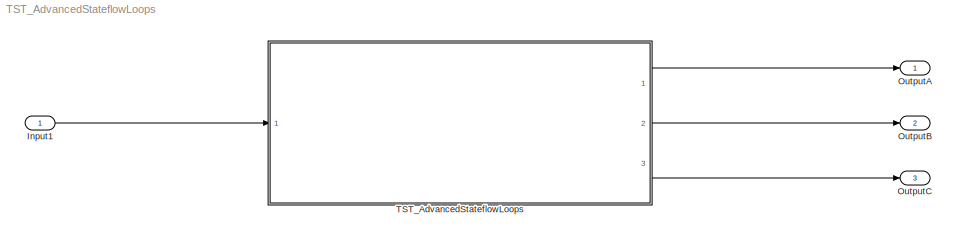
MODEL TST_AdvancedStateflowLoops
KIND model
BLOCK [Inport] Input1
  BusOutputAsStruct = on
  IconDisplay = Port number
  OutDataTypeStr = uint32
  SID = 23
BLOCK [Outport] OutputA
  IconDisplay = Port number
  OutDataTypeStr = double
  PortDimensions = 1
  SID = 25
BLOCK [Outport] OutputB
  IconDisplay = Port number
  OutDataTypeStr = double
  Port = 2
  PortDimensions = 1
  SID = 32
BLOCK [Outport] OutputC
  IconDisplay = Port number
  OutDataTypeStr = double
  Port = 3
  PortDimensions = 1
  SID = 37
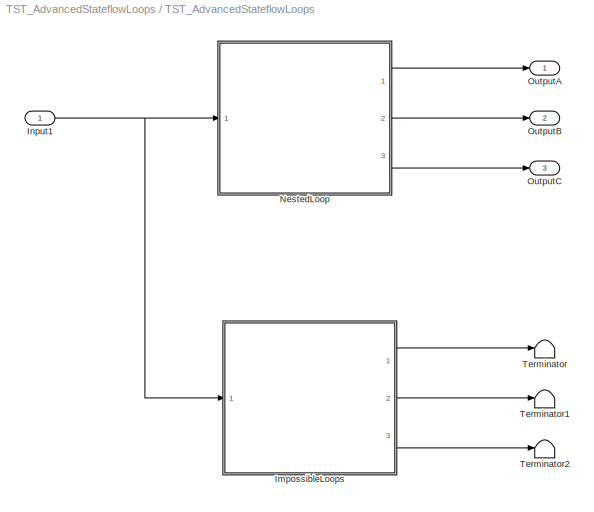
BLOCK [SubSystem] TST_AdvancedStateflowLoops
  Ports = [1, 3]
  RequestExecContextInheritance = off
  SID = 2
  TreatAsAtomicUnit = on
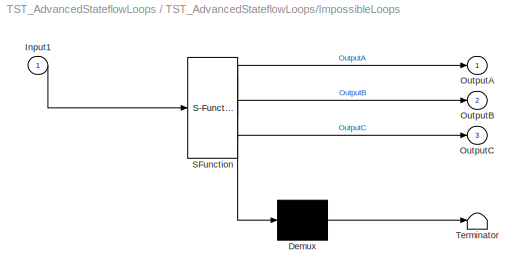
BLOCK [SubSystem] TST_AdvancedStateflowLoops/ImpossibleLoops
  ErrorFcn = Stateflow.Translate.translate
  PermitHierarchicalResolution = ExplicitOnly
  Ports = [1, 3]
  RequestExecContextInheritance = off
  SFBlockType = Chart
  SID = 48
  TreatAsAtomicUnit = on
BLOCK [Demux] TST_AdvancedStateflowLoops/ImpossibleLoops/ Demux 
  Outputs = 1
  Ports = [1, 1]
  SID = 48::14
BLOCK [S-Function] TST_AdvancedStateflowLoops/ImpossibleLoops/ SFunction 
  EnableBusSupport = off
  FunctionName = sf_sfun
  PortCounts = [1 4]
  Ports = [1, 4]
  SFcnIsStateOwnerBlock = off
  SFunctionDeploymentMode = off
  SID = 48::13
  Tag = Stateflow S-Function 2
BLOCK [Terminator] TST_AdvancedStateflowLoops/ImpossibleLoops/ Terminator 
  SID = 48::15
BLOCK [Inport] TST_AdvancedStateflowLoops/ImpossibleLoops/Input1
  IconDisplay = Port number
  SID = 48::9
BLOCK [Outport] TST_AdvancedStateflowLoops/ImpossibleLoops/OutputA
  IconDisplay = Port number
  SID = 48::10
BLOCK [Outport] TST_AdvancedStateflowLoops/ImpossibleLoops/OutputB
  IconDisplay = Port number
  Port = 2
  SID = 48::11
BLOCK [Outport] TST_AdvancedStateflowLoops/ImpossibleLoops/OutputC
  IconDisplay = Port number
  Port = 3
  SID = 48::12
BLOCK [Inport] TST_AdvancedStateflowLoops/Input1
  BusOutputAsStruct = on
  IconDisplay = Port number
  OutDataTypeStr = uint32
  SID = 39
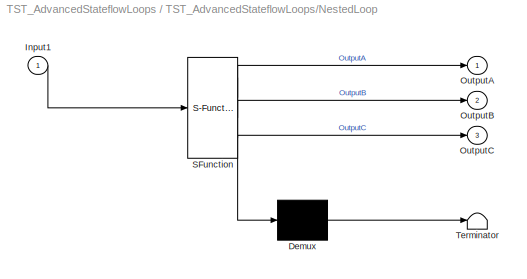
BLOCK [SubSystem] TST_AdvancedStateflowLoops/NestedLoop
  ErrorFcn = Stateflow.Translate.translate
  PermitHierarchicalResolution = ExplicitOnly
  Ports = [1, 3]
  RequestExecContextInheritance = off
  SFBlockType = Chart
  SID = 43
  TreatAsAtomicUnit = on
BLOCK [Demux] TST_AdvancedStateflowLoops/NestedLoop/ Demux 
  Outputs = 1
  Ports = [1, 1]
  SID = 43::14
BLOCK [S-Function] TST_AdvancedStateflowLoops/NestedLoop/ SFunction 
  EnableBusSupport = off
  FunctionName = sf_sfun
  PortCounts = [1 4]
  Ports = [1, 4]
  SFcnIsStateOwnerBlock = off
  SFunctionDeploymentMode = off
  SID = 43::13
  Tag = Stateflow S-Function 1
BLOCK [Terminator] TST_AdvancedStateflowLoops/NestedLoop/ Terminator 
  SID = 43::15
BLOCK [Inport] TST_AdvancedStateflowLoops/NestedLoop/Input1
  IconDisplay = Port number
  SID = 43::9
BLOCK [Outport] TST_AdvancedStateflowLoops/NestedLoop/OutputA
  IconDisplay = Port number
  SID = 43::10
BLOCK [Outport] TST_AdvancedStateflowLoops/NestedLoop/OutputB
  IconDisplay = Port number
  Port = 2
  SID = 43::11
BLOCK [Outport] TST_AdvancedStateflowLoops/NestedLoop/OutputC
  IconDisplay = Port number
  Port = 3
  SID = 43::12
BLOCK [Outport] TST_AdvancedStateflowLoops/OutputA
  IconDisplay = Port number
  OutDataTypeStr = double
  PortDimensions = 1
  SID = 40
BLOCK [Outport] TST_AdvancedStateflowLoops/OutputB
  IconDisplay = Port number
  OutDataTypeStr = double
  Port = 2
  PortDimensions = 1
  SID = 41
BLOCK [Outport] TST_AdvancedStateflowLoops/OutputC
  IconDisplay = Port number
  OutDataTypeStr = double
  Port = 3
  PortDimensions = 1
  SID = 42
BLOCK [Terminator] TST_AdvancedStateflowLoops/Terminator
  SID = 49
BLOCK [Terminator] TST_AdvancedStateflowLoops/Terminator1
  SID = 50
BLOCK [Terminator] TST_AdvancedStateflowLoops/Terminator2
  SID = 51
LINE Input1:1 -> TST_AdvancedStateflowLoops:1
LINE TST_AdvancedStateflowLoops/ImpossibleLoops/ Demux :1 -> TST_AdvancedStateflowLoops/ImpossibleLoops/ Terminator :1
LINE TST_AdvancedStateflowLoops/ImpossibleLoops/ SFunction :1 -> TST_AdvancedStateflowLoops/ImpossibleLoops/ Demux :1
LINE TST_AdvancedStateflowLoops/ImpossibleLoops/ SFunction :2 -> TST_AdvancedStateflowLoops/ImpossibleLoops/OutputA:1
LINE TST_AdvancedStateflowLoops/ImpossibleLoops/ SFunction :3 -> TST_AdvancedStateflowLoops/ImpossibleLoops/OutputB:1
LINE TST_AdvancedStateflowLoops/ImpossibleLoops/ SFunction :4 -> TST_AdvancedStateflowLoops/ImpossibleLoops/OutputC:1
LINE TST_AdvancedStateflowLoops/ImpossibleLoops/Input1:1 -> TST_AdvancedStateflowLoops/ImpossibleLoops/ SFunction :1
LINE TST_AdvancedStateflowLoops/ImpossibleLoops:1 -> TST_AdvancedStateflowLoops/Terminator:1
LINE TST_AdvancedStateflowLoops/ImpossibleLoops:2 -> TST_AdvancedStateflowLoops/Terminator1:1
LINE TST_AdvancedStateflowLoops/ImpossibleLoops:3 -> TST_AdvancedStateflowLoops/Terminator2:1
NET TST_AdvancedStateflowLoops/Input1:1 -> TST_AdvancedStateflowLoops/ImpossibleLoops:1, TST_AdvancedStateflowLoops/NestedLoop:1
LINE TST_AdvancedStateflowLoops/NestedLoop/ Demux :1 -> TST_AdvancedStateflowLoops/NestedLoop/ Terminator :1
LINE TST_AdvancedStateflowLoops/NestedLoop/ SFunction :1 -> TST_AdvancedStateflowLoops/NestedLoop/ Demux :1
LINE TST_AdvancedStateflowLoops/NestedLoop/ SFunction :2 -> TST_AdvancedStateflowLoops/NestedLoop/OutputA:1
LINE TST_AdvancedStateflowLoops/NestedLoop/ SFunction :3 -> TST_AdvancedStateflowLoops/NestedLoop/OutputB:1
LINE TST_AdvancedStateflowLoops/NestedLoop/ SFunction :4 -> TST_AdvancedStateflowLoops/NestedLoop/OutputC:1
LINE TST_AdvancedStateflowLoops/NestedLoop/Input1:1 -> TST_AdvancedStateflowLoops/NestedLoop/ SFunction :1
LINE TST_AdvancedStateflowLoops/NestedLoop:1 -> TST_AdvancedStateflowLoops/OutputA:1
LINE TST_AdvancedStateflowLoops/NestedLoop:2 -> TST_AdvancedStateflowLoops/OutputB:1
LINE TST_AdvancedStateflowLoops/NestedLoop:3 -> TST_AdvancedStateflowLoops/OutputC:1
LINE TST_AdvancedStateflowLoops:1 -> OutputA:1
LINE TST_AdvancedStateflowLoops:2 -> OutputB:1
LINE TST_AdvancedStateflowLoops:3 -> OutputC:1
note: NET lines group one-source signal fan-out (src -> all destinations, sorted); 1:1 wires keep LINE
CHART TST_AdvancedStateflowLoops/NestedLoop states=1 transitions=7
  STATE_LABEL 'demonstrate loop nested inside another loop'
CHART TST_AdvancedStateflowLoops/ImpossibleLoops states=2 transitions=9
  STATE_LABEL 'Designing something like this is probably\\nnot a good idea!'
  STATE_LABEL 'Even though the graphical presentation doesn not show this\\nwell: The second loop (starting with [D] is simply nested\\ninside the first loop (starting at [A]...). Both loops share the [D] transition.'
